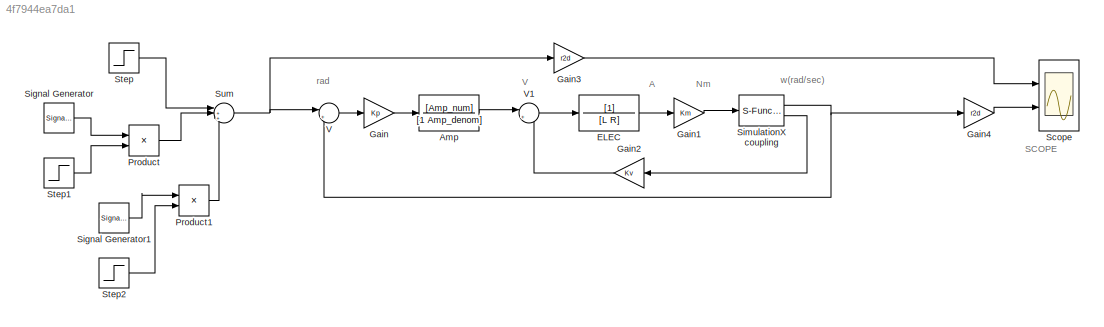
MODEL slx_4f7944ea7da1
KIND model
CONFIG AbsTol = auto
CONFIG EnableMultiTasking = off
CONFIG FixedStep = auto
CONFIG InitFcn = Simulation_parameters
CONFIG MaxStep = auto
CONFIG MinStep = auto
CONFIG PreLoadFcn = Simulation_parameters
CONFIG RelTol = 1e-3
CONFIG SampleTimeConstraint = Unconstrained
CONFIG Solver = VariableStepAuto
CONFIG SolverName = VariableStepAuto
CONFIG StartTime = 0.0
CONFIG StopTime = SimTime
BLOCK [TransferFcn] Amp
  Denominator = [1 Amp_denom]
  Numerator = [Amp_num]
BLOCK [TransferFcn] ELEC
  Denominator = [L R]
BLOCK [Gain] Gain
  Gain = Kp
BLOCK [Gain] Gain1
  Gain = Km
BLOCK [Gain] Gain2
  Gain = Kv
  NameLocation = top
BLOCK [Gain] Gain3
  Gain = r2d
BLOCK [Gain] Gain4
  Gain = r2d
BLOCK [Product] Product
  Ports = [2, 1]
BLOCK [Product] Product1
  Ports = [2, 1]
BLOCK [Scope] Scope
  Floating = off
  NumInputPorts = 2
  Ports = [2]
  ScopeSpecificationString = Simulink.scopes.TimeScopeBlockCfg('CurrentConfiguration', extmgr.ConfigurationSet(extmgr.Configuration('Core','General UI',true),extmgr.Configuration('Core','Source UI',true),extmgr.Configuration('Sources','WiredSimulink',true,'SampleTime','0'),extmgr.Configuration('Visuals','Time Domain',true,'SerializedDisplays',{struct('MinYLimReal','-11.25','MaxYLimReal','101.25','YLabelReal','Angle','MinYLimM...<+1543ch>
BLOCK [SignalGenerator] Signal Generator
  Amplitude = pi/2*extra
  Frequency = 0.5
  Ports = [0, 1]
BLOCK [SignalGenerator] Signal Generator1
  Amplitude = pi*extra
  Frequency = 2
  Ports = [0, 1]
  WaveForm = sawtooth
BLOCK [S-Function] SimulationX coupling
  EnableBusSupport = off
  FunctionName = ITIFct2
  Parameters = ip, port, ts, nIn, nOut
  Ports = [1, 2]
  SFcnIsStateOwnerBlock = off
  SFunctionDeploymentMode = off
BLOCK [Step] Step
  After = pi/2
  SampleTime = 0
  Time = 0.5
BLOCK [Step] Step1
  After = 0
  Before = 1
  SampleTime = 0
  Time = 0.9
BLOCK [Step] Step2
  SampleTime = 0
  Time = 1.5
BLOCK [Sum] Sum
  Inputs = |+++
  Ports = [3, 1]
BLOCK [Sum] V
  Inputs = |+-
  Ports = [2, 1]
BLOCK [Sum] V1
  Inputs = |+-
  Ports = [2, 1]
ANNOTATION (root): A
ANNOTATION (root): Nm
ANNOTATION (root): SCOPE
ANNOTATION (root): V
ANNOTATION (root): rad
ANNOTATION (root): w(rad/sec)
LINE Amp:1 -> V1:1
LINE ELEC:1 -> Gain1:1
LINE Gain1:1 -> SimulationX coupling:1
LINE Gain2:1 -> V1:2
LINE Gain3:1 -> Scope:1
LINE Gain4:1 -> Scope:2
LINE Gain:1 -> Amp:1
LINE Product1:1 -> Sum:3
LINE Product:1 -> Sum:2
LINE Signal Generator1:1 -> Product1:1
LINE Signal Generator:1 -> Product:1
NET SimulationX coupling:1 -> Gain4:1, V:2
LINE SimulationX coupling:2 -> Gain2:1
LINE Step1:1 -> Product:2
LINE Step2:1 -> Product1:2
LINE Step:1 -> Sum:1
NET Sum:1 -> Gain3:1, V:1
LINE V1:1 -> ELEC:1
LINE V:1 -> Gain:1
note: NET lines group one-source signal fan-out (src -> all destinations, sorted); 1:1 wires keep LINE
